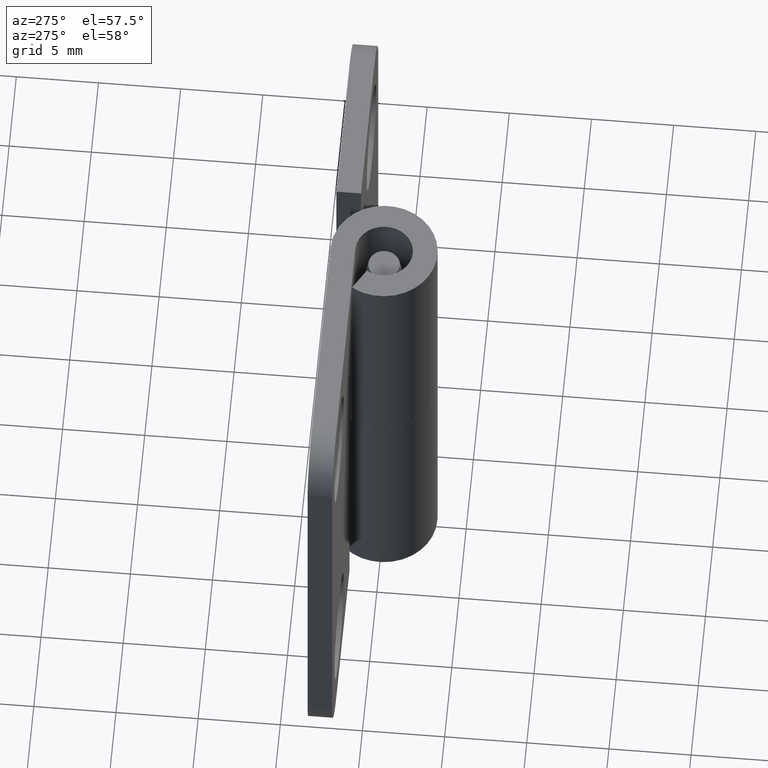
[diagram: clean part render]
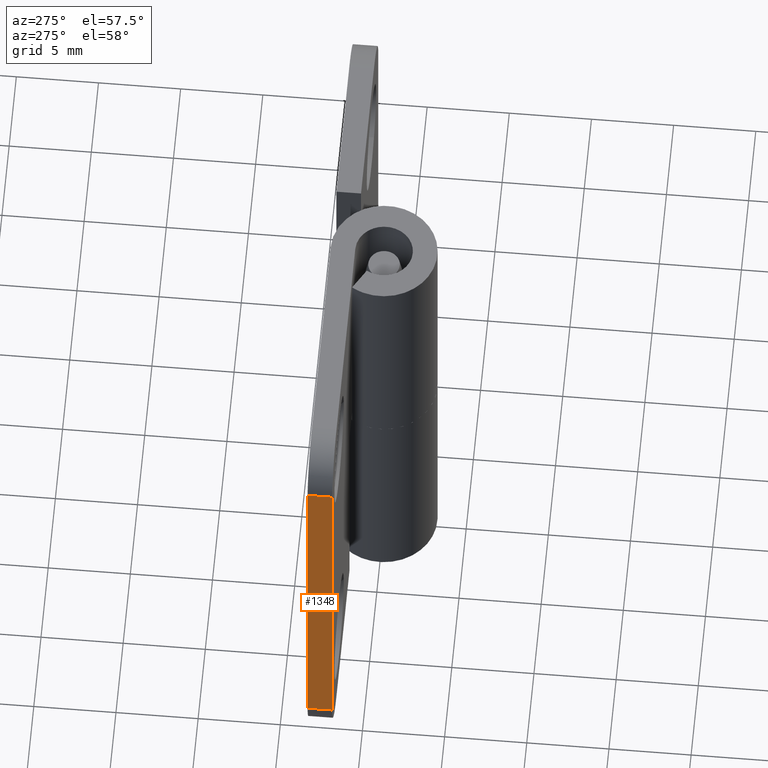
[diagram: same view with one face highlighted and labeled with its STEP entity id]
A machine part, auxiliary view. The second image highlights one B-rep face of the part: STEP entity #1348.
In plain terms, the highlighted face is a freeform B-spline surface patch.
Its self-contained STEP definition (entity closure, byte-faithful):
#1223=CARTESIAN_POINT('',(-16.0,1.750000000000030,27.000008000000001));
#1224=VERTEX_POINT('',#1223);
#1245=CARTESIAN_POINT('',(-16.0,3.250000000000000,27.000008000000001));
#1246=VERTEX_POINT('',#1245);
#1260=CARTESIAN_POINT('',(-16.0,3.250000000000000,27.000008000000001));
#1261=CARTESIAN_POINT('',(-16.0,1.750000000000030,27.000008000000001));
#1262=QUASI_UNIFORM_CURVE('',1,(#1260,#1261),.UNSPECIFIED.,.F.,.U.);
#1263=EDGE_CURVE('',#1246,#1224,#1262,.T.);
#1282=CARTESIAN_POINT('',(-16.0,1.750000000000030,3.0));
#1283=VERTEX_POINT('',#1282);
#1299=CARTESIAN_POINT('',(-16.0,3.250000000000000,3.0));
#1300=VERTEX_POINT('',#1299);
#1301=CARTESIAN_POINT('',(-16.0,3.250000000000000,3.0));
#1302=CARTESIAN_POINT('',(-16.0,1.750000000000030,3.0));
#1303=QUASI_UNIFORM_CURVE('',1,(#1301,#1302),.UNSPECIFIED.,.F.,.U.);
#1304=EDGE_CURVE('',#1300,#1283,#1303,.T.);
#1329=CARTESIAN_POINT('',(-16.0,1.675075002907323,1.801199732661559));
#1330=CARTESIAN_POINT('',(-16.0,1.675075002907323,28.198807194454481));
#1331=CARTESIAN_POINT('',(-16.0,3.324925037325844,1.801199732661559));
#1332=CARTESIAN_POINT('',(-16.0,3.324925037325844,28.198807194454481));
#1333=B_SPLINE_SURFACE_WITH_KNOTS('',1,1,((#1329,#1331),(#1330,#1332)),.UNSPECIFIED.,.F.,.F.,.U.,(2,2),(2,2),(0.0,26.397607461792919),(0.041708334948495,0.958291687403247),.UNSPECIFIED.);
#1334=ORIENTED_EDGE('',*,*,#1263,.F.);
#1335=CARTESIAN_POINT('',(-16.0,3.250000000000000,3.0));
#1336=CARTESIAN_POINT('',(-16.0,3.250000000000000,27.000008000000001));
#1337=QUASI_UNIFORM_CURVE('',1,(#1335,#1336),.UNSPECIFIED.,.F.,.U.);
#1338=EDGE_CURVE('',#1300,#1246,#1337,.T.);
#1339=ORIENTED_EDGE('',*,*,#1338,.F.);
#1340=ORIENTED_EDGE('',*,*,#1304,.T.);
#1341=CARTESIAN_POINT('',(-16.0,1.750000000000030,3.0));
#1342=CARTESIAN_POINT('',(-16.0,1.750000000000030,27.000008000000001));
#1343=QUASI_UNIFORM_CURVE('',1,(#1341,#1342),.UNSPECIFIED.,.F.,.U.);
#1344=EDGE_CURVE('',#1283,#1224,#1343,.T.);
#1345=ORIENTED_EDGE('',*,*,#1344,.T.);
#1346=EDGE_LOOP('',(#1334,#1339,#1340,#1345));
#1347=FACE_OUTER_BOUND('',#1346,.T.);
#1348=ADVANCED_FACE('',(#1347),#1333,.T.);